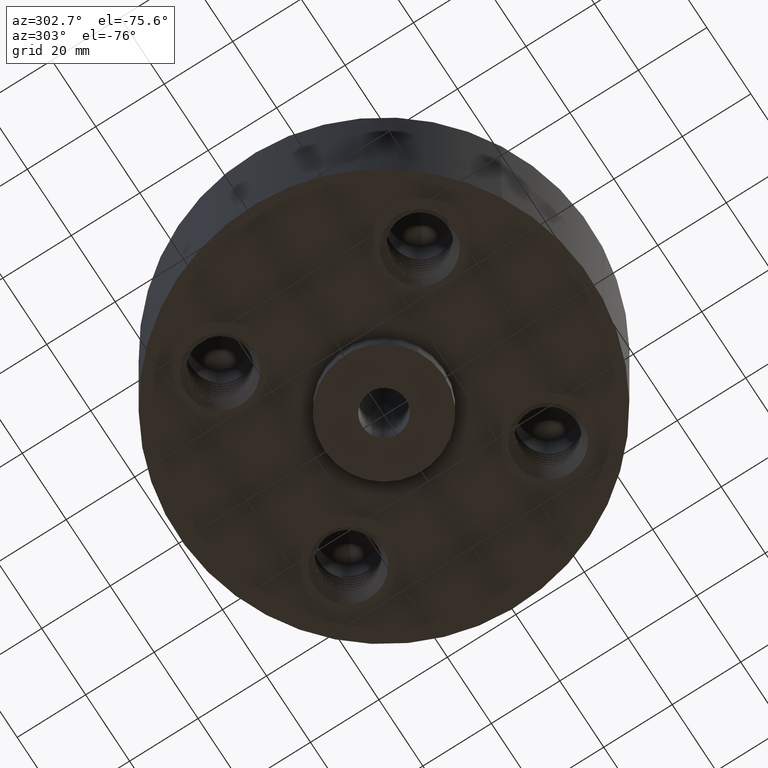
[diagram: clean part render]
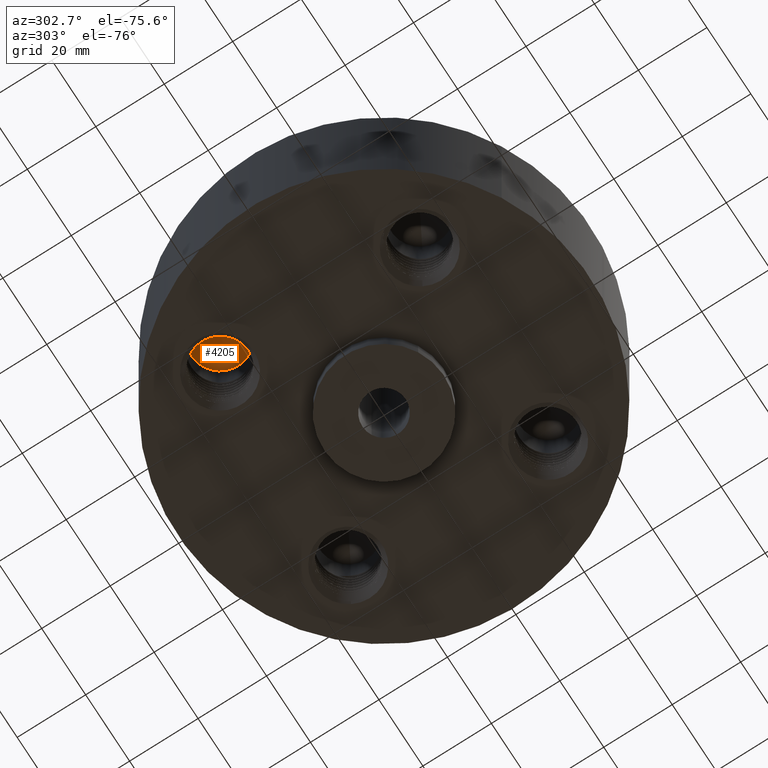
[diagram: same view with one face highlighted and labeled with its STEP entity id]
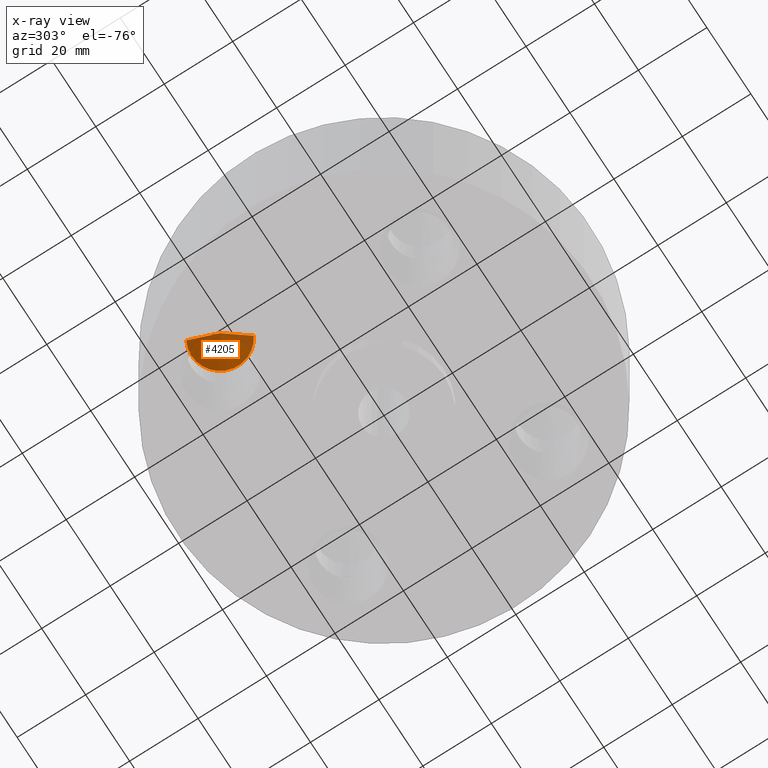
[diagram: x-ray of the same camera — body ghosted, the highlighted face saturated]
A machine part, auxiliary view. The second image highlights one B-rep face of the part: STEP entity #4205.
The next image is the same camera in x-ray: the body ghosted, the highlighted face saturated — about 23% of this face is hidden behind the body in this view.
In plain terms, the highlighted conical surface has half-angle 60 deg.
Its self-contained STEP definition (entity closure, byte-faithful):
#4177=AXIS2_PLACEMENT_3D('Cone Axis2P3D',#4174,#4175,#4176) ;
#4190=AXIS2_PLACEMENT_3D('Circle Axis2P3D',#4188,#4189,$) ;
#4174=CARTESIAN_POINT('Axis2P3D Location',(-1.14904851943,1.14904851943,1.4993708883)) ;
#4179=CARTESIAN_POINT('Line Origine',(-1.22767430776,1.29297205958,1.40468544415)) ;
#4183=CARTESIAN_POINT('Vertex',(-1.14904851943,1.14904851943,1.4993708883)) ;
#4185=CARTESIAN_POINT('Vertex',(-1.3063000961,1.43689559973,1.31000000001)) ;
#4188=CARTESIAN_POINT('Axis2P3D Location',(-1.14904851943,1.14904851943,1.31000000001)) ;
#4192=CARTESIAN_POINT('Vertex',(-0.99179694277,0.861201439132,1.31000000001)) ;
#4195=CARTESIAN_POINT('Line Origine',(-1.0704227311,1.00512497928,1.40468544415)) ;
#4175=DIRECTION('Axis2P3D Direction',(-0.,-0.,-0.0393700787402)) ;
#4176=DIRECTION('Axis2P3D XDirection',(0.0188750212049,-0.0345504945626,0.)) ;
#4180=DIRECTION('Vector Direction',(-0.0163462478604,0.0299216060045,-0.0196850393701)) ;
#4189=DIRECTION('Axis2P3D Direction',(-0.,0.,-0.0393700787402)) ;
#4196=DIRECTION('Vector Direction',(0.0163462478604,-0.0299216060045,-0.0196850393701)) ;
#4181=VECTOR('Line Direction',#4180,0.0393700787402) ;
#4197=VECTOR('Line Direction',#4196,0.0393700787402) ;
#4201=ORIENTED_EDGE('',*,*,#4187,.T.) ;
#4202=ORIENTED_EDGE('',*,*,#4194,.F.) ;
#4203=ORIENTED_EDGE('',*,*,#4199,.F.) ;
#4205=ADVANCED_FACE('PartBody',(#4204),#4178,.F.) ;
#4191=CIRCLE('generated circle',#4190,0.328000000001) ;
#4178=CONICAL_SURFACE('Cone',#4177,0.,1.0471975512) ;
#4187=EDGE_CURVE('',#4184,#4186,#4182,.T.) ;
#4194=EDGE_CURVE('',#4193,#4186,#4191,.F.) ;
#4199=EDGE_CURVE('',#4184,#4193,#4198,.T.) ;
#4200=EDGE_LOOP('',(#4201,#4202,#4203)) ;
#4204=FACE_OUTER_BOUND('',#4200,.T.) ;
#4182=LINE('Line',#4179,#4181) ;
#4198=LINE('Line',#4195,#4197) ;
#4184=VERTEX_POINT('',#4183) ;
#4186=VERTEX_POINT('',#4185) ;
#4193=VERTEX_POINT('',#4192) ;